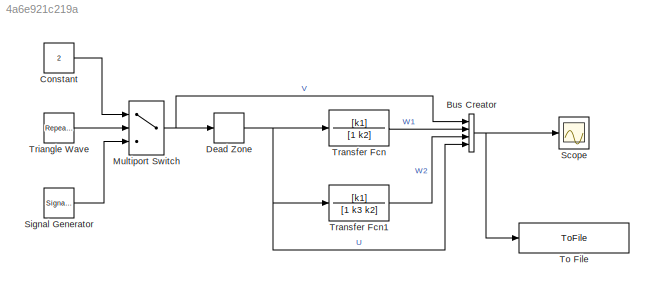
MODEL slx_4a6e921c219a
KIND model
BLOCK [BusCreator] Bus Creator
  DisplayOption = bar
  Ports = [4, 1]
BLOCK [Constant] Constant
  Value = 2
BLOCK [DeadZone] Dead Zone
  UpperValue = 0.6
BLOCK [MultiPortSwitch] Multiport Switch
  InputSameDT = off
  Inputs = 2
  Ports = [3, 1]
  SaturateOnIntegerOverflow = off
BLOCK [Scope] Scope
  Floating = off
  NumInputPorts = 1
  Ports = [1]
  ShowLegends = on
BLOCK [SignalGenerator] Signal Generator
  Ports = [0, 1]
  Units = rad/sec
  WaveForm = square
BLOCK [ToFile] To File
  Filename = motorSimulation.mat
  MatrixName = expData
  Ports = [1]
  SaveFormat = Timeseries
BLOCK [TransferFcn] Transfer Fcn
  Denominator = [1 k2]
  Numerator = [k1]
BLOCK [TransferFcn] Transfer Fcn1
  Denominator = [1 k3 k2]
  Numerator = [k1]
BLOCK [Reference] Triangle Wave  REF=simulink/Sources/Repeating
Sequence
  Ports = [0, 1]
  SourceBlock = simulink/Sources/Repeating\nSequence
  SourceType = Repeating table
  rep_seq_t = [0 1 2 3 4]
  rep_seq_y = [0 1 0 -1 0]
NET Bus Creator:1 -> Scope:1, To File:1
LINE Constant:1 -> Multiport Switch:1
NET Dead Zone:1 -> Bus Creator:4, Transfer Fcn1:1, Transfer Fcn:1
NET Multiport Switch:1 -> Bus Creator:1, Dead Zone:1
LINE Signal Generator:1 -> Multiport Switch:3
LINE Transfer Fcn1:1 -> Bus Creator:3
LINE Transfer Fcn:1 -> Bus Creator:2
LINE Triangle Wave:1 -> Multiport Switch:2
note: NET lines group one-source signal fan-out (src -> all destinations, sorted); 1:1 wires keep LINE
